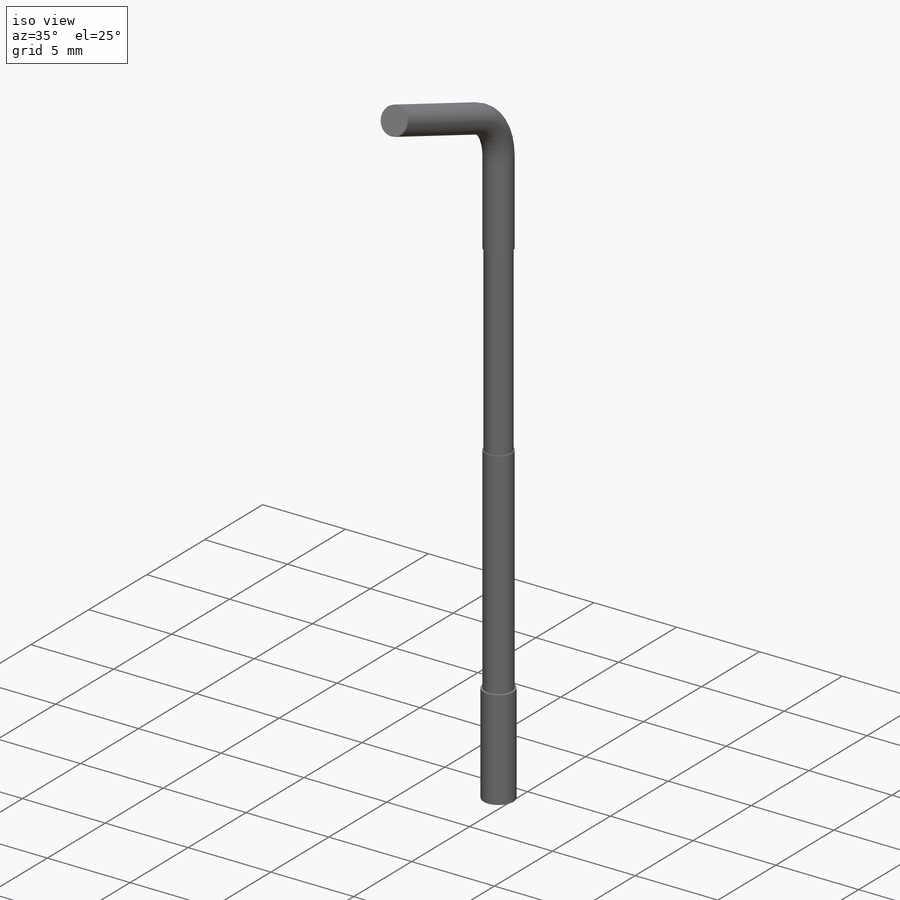
[diagram: iso view]
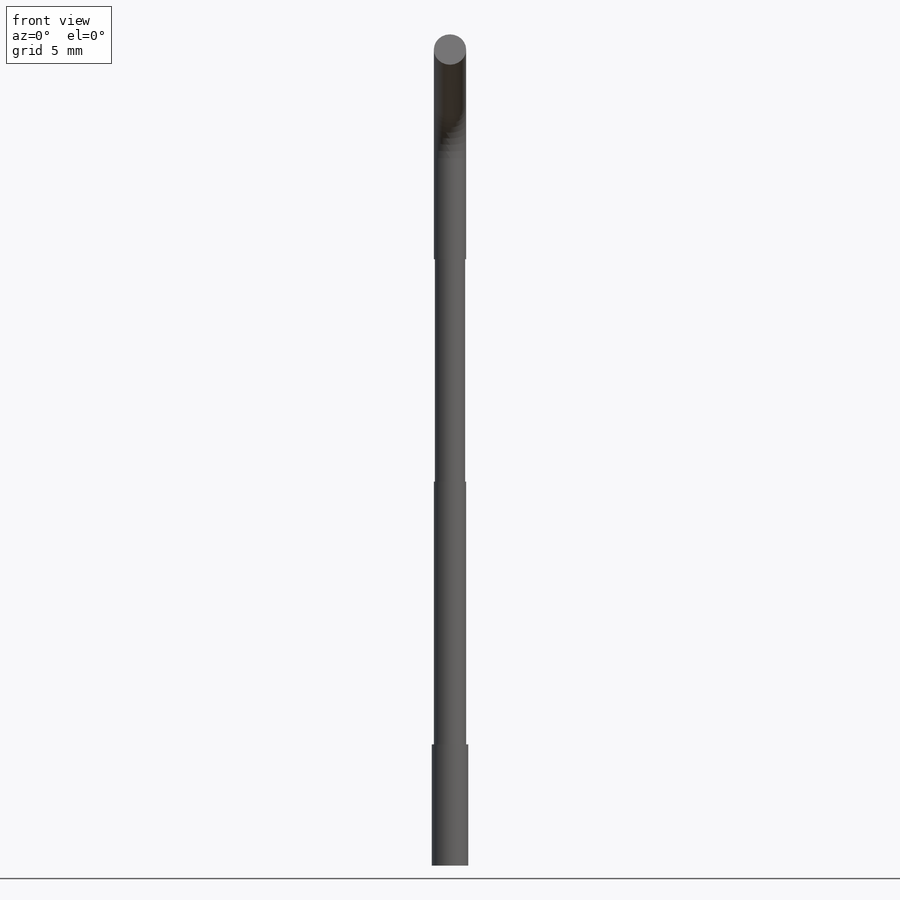
[diagram: front view]
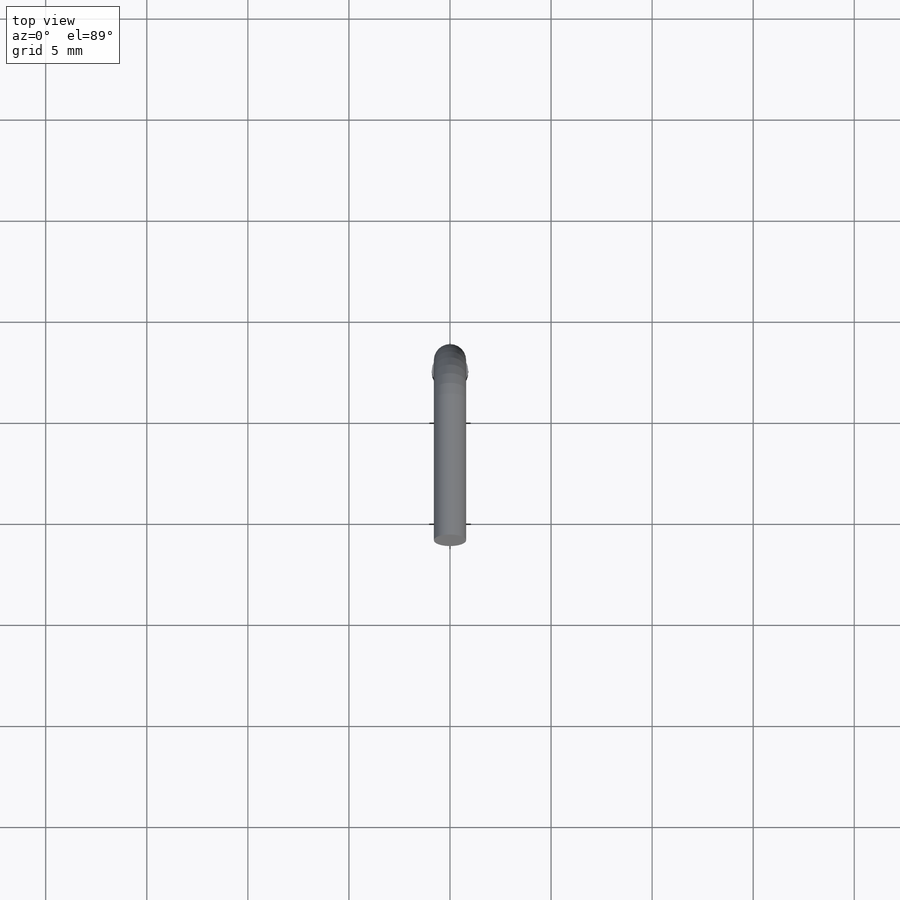
[diagram: top view]
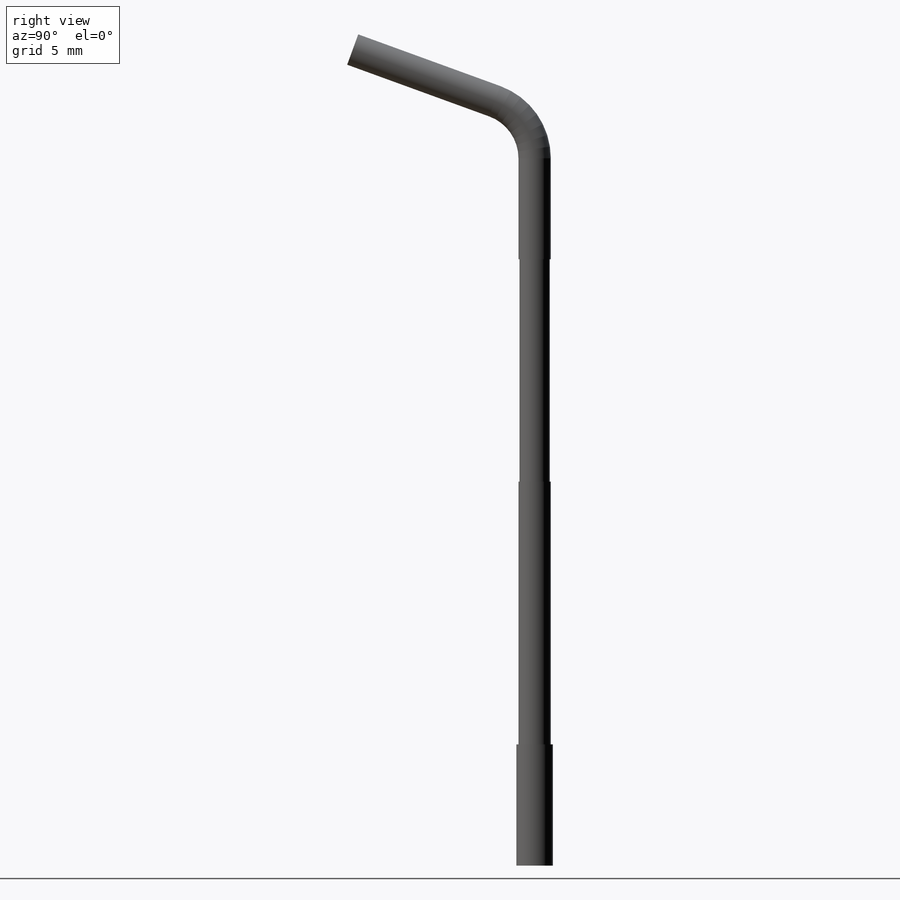
[diagram: right view]
SOLIDWORKS PART (.sldprt)
format: sldprt  version: not decoded by parser v0  size: 140,800 bytes
history: native  units: mm
features: sketch x4, material x1, plane x1, sweep x1, extrude x1, cut_extrude x1 (+12 scaffold rows collapsed)
feature tree (21):
  scaffold x12  (default folders/planes/origin — collapsed)
  material  "Stainless Steel (ferritic)"
  plane  "Plane1"  Offset=19mm
  sketch  "Sketch1"  dims[c1.D1=3.0mm c1.D2=7.5mm c1.D3=35.0mm c1.D4=9.0mm c1.D5=~11.608818mm c2.D5=70.0deg c2.D2=7.5mm]
  sketch  "Sketch2"  dims[D1=1.6mm]
  sweep  "Sweep1"
  sketch  "Sketch4"  dims[D1=1.8mm]
  extrude  "Extrude1"  Depth=6mm
  sketch  "Sketch5"  dims[D1=1.5mm]
  cut_extrude  "Extrude3"  Depth=11mm
decode coverage: 6 of 7 modeling features carry decoded parameters
note: ~ marks probable driven/reference dimensions
note: suppression state not decoded; provenance and decode notes live in map.json
